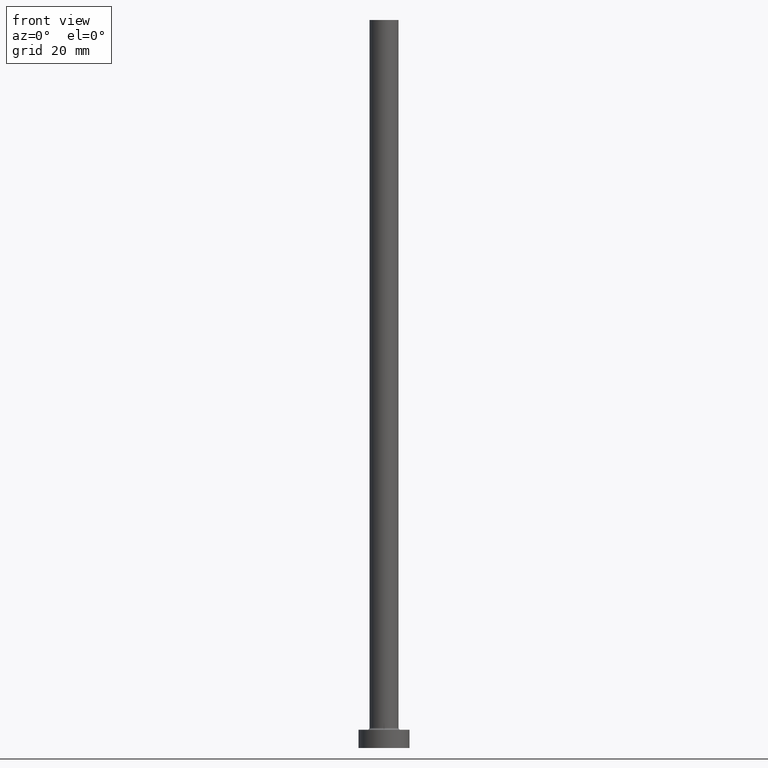
[diagram: clean part render]
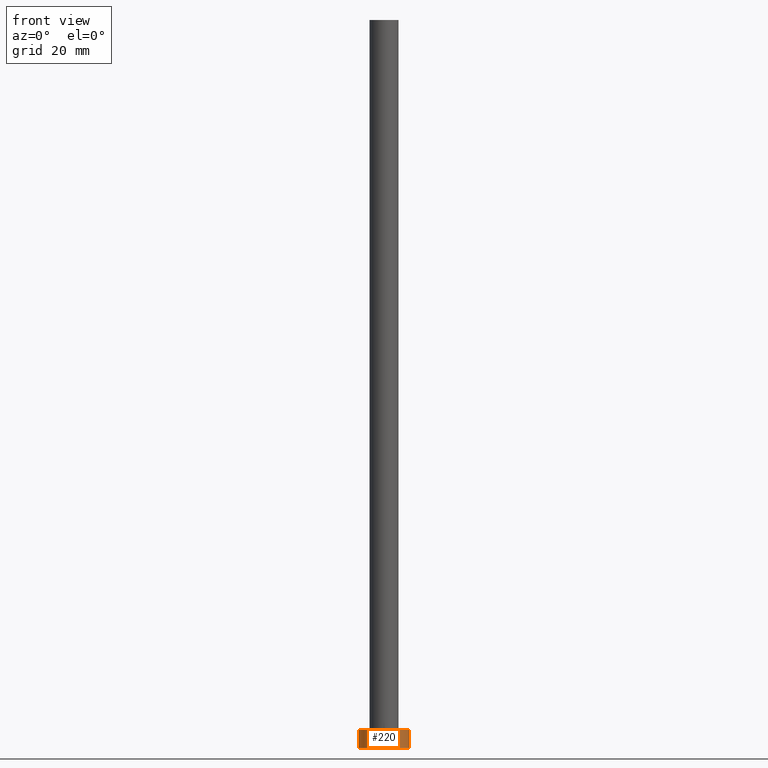
[diagram: same view with one face highlighted and labeled with its STEP entity id]
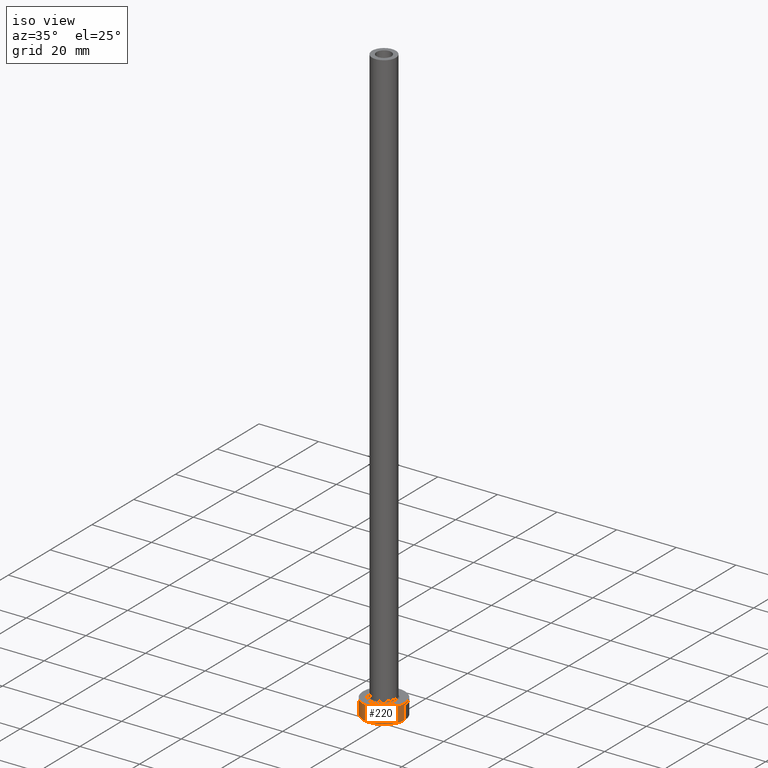
[diagram: same view with one face highlighted and labeled with its STEP entity id]
A machine part, front view. The second image highlights one B-rep face of the part: STEP entity #220.
A second angle (iso view) of the same face is appended — the face is thin or edge-on in the first view.
In plain terms, the highlighted cylindrical surface (edge-blend (fillet) strip) has radius 7 mm, axis along (-0, -0, -1).
Its self-contained STEP definition (entity closure, byte-faithful):
#4 = VERTEX_POINT ( 'NONE', #326 ) ;
#11 = VERTEX_POINT ( 'NONE', #398 ) ;
#25 = CARTESIAN_POINT ( 'NONE',  ( 0.000000000000000000, 0.000000000000000000, 5.000000000000000000 ) ) ;
#69 = DIRECTION ( 'NONE',  ( 0.000000000000000000, 0.000000000000000000, 1.000000000000000000 ) ) ;
#79 = VECTOR ( 'NONE', #244, 1000.000000000000000 ) ;
#97 = LINE ( 'NONE', #196, #79 ) ;
#117 = DIRECTION ( 'NONE',  ( 0.000000000000000000, 0.000000000000000000, 1.000000000000000000 ) ) ;
#118 = CIRCLE ( 'NONE', #433, 7.000000000000000000 ) ;
#123 = EDGE_CURVE ( 'NONE', #11, #212, #118, .T. ) ;
#153 = ORIENTED_EDGE ( 'NONE', *, *, #454, .F. ) ;
#157 = DIRECTION ( 'NONE',  ( -0.000000000000000000, -0.000000000000000000, -1.000000000000000000 ) ) ;
#159 = DIRECTION ( 'NONE',  ( 1.000000000000000000, 0.000000000000000000, 0.000000000000000000 ) ) ;
#180 = ORIENTED_EDGE ( 'NONE', *, *, #408, .F. ) ;
#184 = DIRECTION ( 'NONE',  ( 1.000000000000000000, 0.000000000000000000, 0.000000000000000000 ) ) ;
#186 = AXIS2_PLACEMENT_3D ( 'NONE', #393, #69, #159 ) ;
#196 = CARTESIAN_POINT ( 'NONE',  ( -7.000000000000000000, 0.000000000000000000, 5.000000000000000000 ) ) ;
#203 = CYLINDRICAL_SURFACE ( 'NONE', #428, 7.000000000000000000 ) ;
#212 = VERTEX_POINT ( 'NONE', #310 ) ;
#220 = ADVANCED_FACE ( 'NONE', ( #346 ), #203, .T. ) ;
#240 = CARTESIAN_POINT ( 'NONE',  ( 7.000000000000000000, 8.572527594031473190E-16, 5.000000000000000000 ) ) ;
#244 = DIRECTION ( 'NONE',  ( -0.000000000000000000, -0.000000000000000000, -1.000000000000000000 ) ) ;
#291 = EDGE_CURVE ( 'NONE', #4, #11, #97, .T. ) ;
#296 = VECTOR ( 'NONE', #157, 1000.000000000000000 ) ;
#310 = CARTESIAN_POINT ( 'NONE',  ( 7.000000000000000000, 8.572527594031473190E-16, 0.000000000000000000 ) ) ;
#326 = CARTESIAN_POINT ( 'NONE',  ( -7.000000000000000000, 0.000000000000000000, 5.000000000000000000 ) ) ;
#341 = VERTEX_POINT ( 'NONE', #240 ) ;
#346 = FACE_OUTER_BOUND ( 'NONE', #447, .T. ) ;
#347 = DIRECTION ( 'NONE',  ( -0.000000000000000000, -0.000000000000000000, -1.000000000000000000 ) ) ;
#369 = LINE ( 'NONE', #380, #296 ) ;
#374 = CIRCLE ( 'NONE', #186, 7.000000000000000000 ) ;
#376 = ORIENTED_EDGE ( 'NONE', *, *, #291, .T. ) ;
#380 = CARTESIAN_POINT ( 'NONE',  ( 7.000000000000000000, 8.572527594031473190E-16, 5.000000000000000000 ) ) ;
#393 = CARTESIAN_POINT ( 'NONE',  ( 0.000000000000000000, 0.000000000000000000, 5.000000000000000000 ) ) ;
#398 = CARTESIAN_POINT ( 'NONE',  ( -7.000000000000000000, 0.000000000000000000, 0.000000000000000000 ) ) ;
#408 = EDGE_CURVE ( 'NONE', #341, #212, #369, .T. ) ;
#418 = DIRECTION ( 'NONE',  ( -1.000000000000000000, 0.000000000000000000, 0.000000000000000000 ) ) ;
#428 = AXIS2_PLACEMENT_3D ( 'NONE', #25, #347, #418 ) ;
#433 = AXIS2_PLACEMENT_3D ( 'NONE', #443, #117, #184 ) ;
#436 = ORIENTED_EDGE ( 'NONE', *, *, #123, .T. ) ;
#443 = CARTESIAN_POINT ( 'NONE',  ( 0.000000000000000000, 0.000000000000000000, 0.000000000000000000 ) ) ;
#447 = EDGE_LOOP ( 'NONE', ( #180, #153, #376, #436 ) ) ;
#454 = EDGE_CURVE ( 'NONE', #4, #341, #374, .T. ) ;